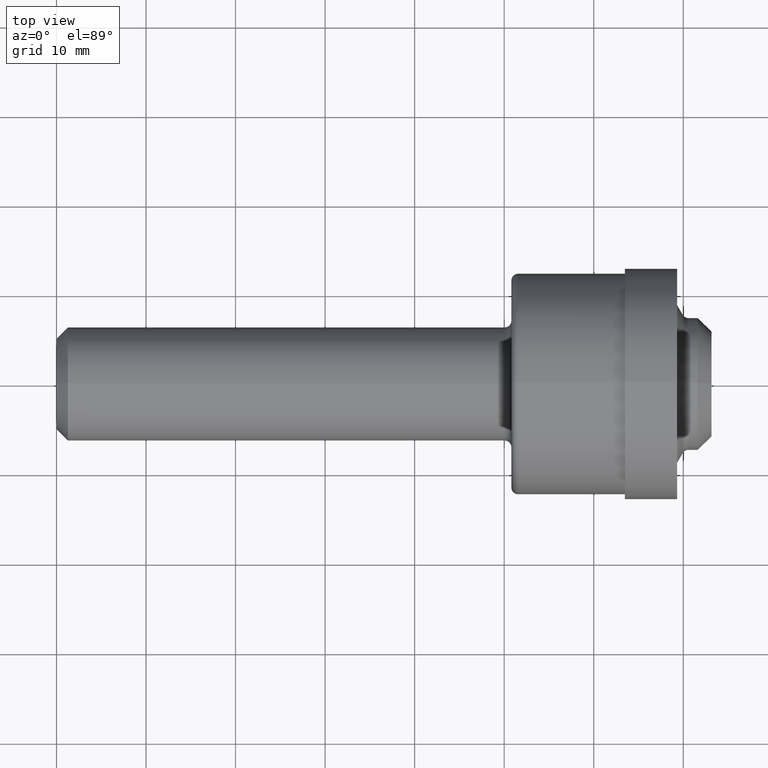
[diagram: clean part render]
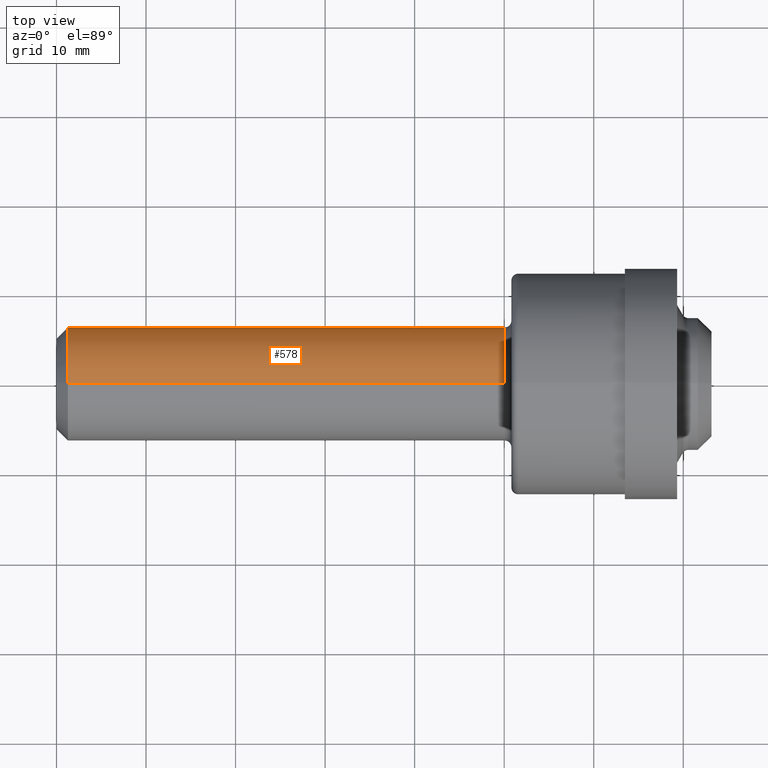
[diagram: same view with one face highlighted and labeled with its STEP entity id]
A machine part, top view. The second image highlights one B-rep face of the part: STEP entity #578.
In plain terms, the highlighted cylindrical surface (partial cylindrical patch) has radius 6.3475 mm, axis along (-1, -0, -0).
Its self-contained STEP definition (entity closure, byte-faithful):
#2 = CARTESIAN_POINT ( 'NONE',  ( 1.969999999999999973, 0.000000000000000000, 0.2499000000000000110 ) ) ;
#23 = CIRCLE ( 'NONE', #596, 0.2499000000000000110 ) ;
#44 = VERTEX_POINT ( 'NONE', #2 ) ;
#48 = VERTEX_POINT ( 'NONE', #109 ) ;
#51 = FACE_OUTER_BOUND ( 'NONE', #665, .T. ) ;
#64 = VERTEX_POINT ( 'NONE', #154 ) ;
#68 = DIRECTION ( 'NONE',  ( -1.000000000000000000, -0.000000000000000000, -0.000000000000000000 ) ) ;
#91 = DIRECTION ( 'NONE',  ( 0.000000000000000000, 0.000000000000000000, 1.000000000000000000 ) ) ;
#93 = EDGE_CURVE ( 'NONE', #539, #64, #119, .T. ) ;
#109 = CARTESIAN_POINT ( 'NONE',  ( 1.969999999999999973, 3.244089370941338612E-17, -0.2499000000000000110 ) ) ;
#119 = CIRCLE ( 'NONE', #380, 0.2499000000000000110 ) ;
#154 = CARTESIAN_POINT ( 'NONE',  ( 0.05000000000000000278, 3.060392351069235421E-17, -0.2499000000000000110 ) ) ;
#174 = EDGE_CURVE ( 'NONE', #48, #64, #227, .T. ) ;
#195 = AXIS2_PLACEMENT_3D ( 'NONE', #481, #68, #608 ) ;
#226 = VECTOR ( 'NONE', #654, 39.37007874015748143 ) ;
#227 = LINE ( 'NONE', #455, #338 ) ;
#247 = ORIENTED_EDGE ( 'NONE', *, *, #93, .F. ) ;
#264 = CYLINDRICAL_SURFACE ( 'NONE', #195, 0.2499000000000000110 ) ;
#274 = DIRECTION ( 'NONE',  ( -1.000000000000000000, -0.000000000000000000, -0.000000000000000000 ) ) ;
#275 = ORIENTED_EDGE ( 'NONE', *, *, #617, .F. ) ;
#338 = VECTOR ( 'NONE', #647, 39.37007874015748143 ) ;
#363 = DIRECTION ( 'NONE',  ( -1.000000000000000000, -0.000000000000000000, -0.000000000000000000 ) ) ;
#380 = AXIS2_PLACEMENT_3D ( 'NONE', #548, #274, #550 ) ;
#395 = LINE ( 'NONE', #658, #226 ) ;
#421 = CARTESIAN_POINT ( 'NONE',  ( 0.05000000000000000278, 0.000000000000000000, 0.2499000000000000110 ) ) ;
#435 = EDGE_CURVE ( 'NONE', #44, #48, #23, .T. ) ;
#455 = CARTESIAN_POINT ( 'NONE',  ( 0.000000000000000000, 3.060392351069235421E-17, -0.2499000000000000110 ) ) ;
#481 = CARTESIAN_POINT ( 'NONE',  ( 0.000000000000000000, 0.000000000000000000, 0.000000000000000000 ) ) ;
#539 = VERTEX_POINT ( 'NONE', #421 ) ;
#548 = CARTESIAN_POINT ( 'NONE',  ( 0.05000000000000000278, 0.000000000000000000, 0.000000000000000000 ) ) ;
#550 = DIRECTION ( 'NONE',  ( 0.000000000000000000, 0.000000000000000000, 1.000000000000000000 ) ) ;
#575 = ORIENTED_EDGE ( 'NONE', *, *, #435, .T. ) ;
#577 = CARTESIAN_POINT ( 'NONE',  ( 1.969999999999999973, 0.000000000000000000, 0.000000000000000000 ) ) ;
#578 = ADVANCED_FACE ( 'NONE', ( #51 ), #264, .T. ) ;
#596 = AXIS2_PLACEMENT_3D ( 'NONE', #577, #363, #91 ) ;
#608 = DIRECTION ( 'NONE',  ( 0.000000000000000000, 0.000000000000000000, 1.000000000000000000 ) ) ;
#617 = EDGE_CURVE ( 'NONE', #44, #539, #395, .T. ) ;
#647 = DIRECTION ( 'NONE',  ( -1.000000000000000000, -0.000000000000000000, -0.000000000000000000 ) ) ;
#654 = DIRECTION ( 'NONE',  ( -1.000000000000000000, -0.000000000000000000, -0.000000000000000000 ) ) ;
#658 = CARTESIAN_POINT ( 'NONE',  ( 0.000000000000000000, 0.000000000000000000, 0.2499000000000000110 ) ) ;
#665 = EDGE_LOOP ( 'NONE', ( #575, #694, #247, #275 ) ) ;
#694 = ORIENTED_EDGE ( 'NONE', *, *, #174, .T. ) ;